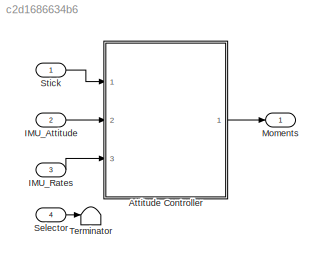
MODEL slx_c2d1686634b6
KIND model
CONFIG AbsTol = auto
CONFIG FixedStep = tc
CONFIG InitFcn = Parameters\n
CONFIG MaxStep = auto
CONFIG MinStep = auto
CONFIG RelTol = 1e-3
CONFIG SampleTimeConstraint = Unconstrained
CONFIG Solver = ode2
CONFIG SolverMode = Auto
CONFIG SolverName = ode2
CONFIG StartTime = 0.0
CONFIG StopTime = 10.0
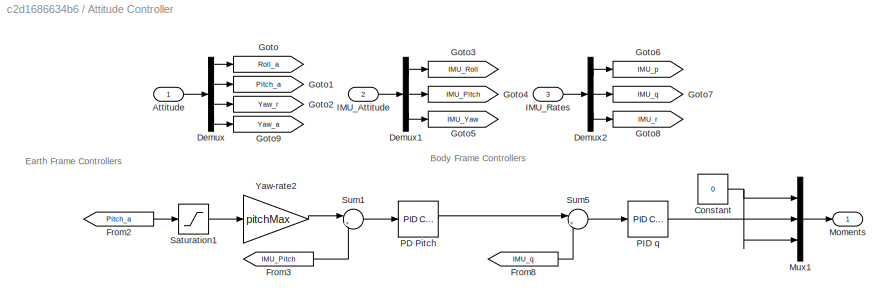
BLOCK [SubSystem] Attitude Controller
  Ports = [3, 1]
  RequestExecContextInheritance = off
  Variant = off
BLOCK [Inport] Attitude Controller/Attitude
  IconDisplay = Port number
BLOCK [Constant] Attitude Controller/Constant
  Value = 0
BLOCK [Demux] Attitude Controller/Demux
  DisplayOption = bar
  Ports = [1, 4]
BLOCK [Demux] Attitude Controller/Demux1
  DisplayOption = bar
  Outputs = 3
  Ports = [1, 3]
BLOCK [Demux] Attitude Controller/Demux2
  DisplayOption = bar
  Outputs = 3
  Ports = [1, 3]
BLOCK [From] Attitude Controller/From2
  GotoTag = Pitch_a
BLOCK [From] Attitude Controller/From3
  GotoTag = IMU_Pitch
BLOCK [From] Attitude Controller/From8
  GotoTag = IMU_q
BLOCK [Goto] Attitude Controller/Goto
  GotoTag = Roll_a
BLOCK [Goto] Attitude Controller/Goto1
  GotoTag = Pitch_a
BLOCK [Goto] Attitude Controller/Goto2
  GotoTag = Yaw_r
BLOCK [Goto] Attitude Controller/Goto3
  GotoTag = IMU_Roll
BLOCK [Goto] Attitude Controller/Goto4
  GotoTag = IMU_Pitch
BLOCK [Goto] Attitude Controller/Goto5
  GotoTag = IMU_Yaw
BLOCK [Goto] Attitude Controller/Goto6
  GotoTag = IMU_p
BLOCK [Goto] Attitude Controller/Goto7
  GotoTag = IMU_q
BLOCK [Goto] Attitude Controller/Goto8
  GotoTag = IMU_r
BLOCK [Goto] Attitude Controller/Goto9
  GotoTag = Yaw_a
BLOCK [Inport] Attitude Controller/IMU_Attitude
  IconDisplay = Port number
  Port = 2
BLOCK [Inport] Attitude Controller/IMU_Rates
  IconDisplay = Port number
  Port = 3
BLOCK [Outport] Attitude Controller/Moments
  IconDisplay = Port number
BLOCK [Mux] Attitude Controller/Mux1
  DisplayOption = bar
  Inputs = 3
  Ports = [3, 1]
BLOCK [Reference] Attitude Controller/PD Pitch  REF=simulink/Continuous/PID Controller
  Ports = [1, 1]
  SourceBlock = simulink/Continuous/PID Controller
  SourceType = PID 1dof
BLOCK [Reference] Attitude Controller/PID q  REF=simulink/Continuous/PID Controller
  Ports = [1, 1]
  SourceBlock = simulink/Continuous/PID Controller
  SourceType = PID 1dof
BLOCK [Saturate] Attitude Controller/Saturation1
  InputPortMap = u0
  LowerLimit = -1
  Ports = [1, 1]
  UpperLimit = 1
BLOCK [Sum] Attitude Controller/Sum1
  IconShape = round
  InputSameDT = off
  Inputs = |+-
  OutDataTypeStr = Inherit: Inherit via internal rule
  Ports = [2, 1]
  SaturateOnIntegerOverflow = off
BLOCK [Sum] Attitude Controller/Sum5
  IconShape = round
  InputSameDT = off
  Inputs = |+-
  OutDataTypeStr = Inherit: Inherit via internal rule
  Ports = [2, 1]
  SaturateOnIntegerOverflow = off
BLOCK [Gain] Attitude Controller/Yaw-rate2
  Gain = pitchMax
  OutDataTypeStr = Inherit: Inherit via internal rule
  ParamDataTypeStr = Inherit: Inherit via internal rule
  SaturateOnIntegerOverflow = off
BLOCK [Inport] IMU_Attitude
  IconDisplay = Port number
  Port = 2
BLOCK [Inport] IMU_Rates
  IconDisplay = Port number
  Port = 3
BLOCK [Outport] Moments
  IconDisplay = Port number
BLOCK [Inport] Selector
  IconDisplay = Port number
  Port = 4
BLOCK [Inport] Stick
  IconDisplay = Port number
BLOCK [Terminator] Terminator
ANNOTATION Attitude Controller: Body Frame Controllers
ANNOTATION Attitude Controller: Earth Frame Controllers
LINE Attitude Controller/Attitude:1 -> Attitude Controller/Demux:1
NET Attitude Controller/Constant:1 -> Attitude Controller/Mux1:1, Attitude Controller/Mux1:3
LINE Attitude Controller/Demux1:1 -> Attitude Controller/Goto3:1
LINE Attitude Controller/Demux1:2 -> Attitude Controller/Goto4:1
LINE Attitude Controller/Demux1:3 -> Attitude Controller/Goto5:1
LINE Attitude Controller/Demux2:1 -> Attitude Controller/Goto6:1
LINE Attitude Controller/Demux2:2 -> Attitude Controller/Goto7:1
LINE Attitude Controller/Demux2:3 -> Attitude Controller/Goto8:1
LINE Attitude Controller/Demux:1 -> Attitude Controller/Goto:1
LINE Attitude Controller/Demux:2 -> Attitude Controller/Goto1:1
LINE Attitude Controller/Demux:3 -> Attitude Controller/Goto2:1
LINE Attitude Controller/Demux:4 -> Attitude Controller/Goto9:1
LINE Attitude Controller/From2:1 -> Attitude Controller/Saturation1:1
LINE Attitude Controller/From3:1 -> Attitude Controller/Sum1:2
LINE Attitude Controller/From8:1 -> Attitude Controller/Sum5:2
LINE Attitude Controller/IMU_Attitude:1 -> Attitude Controller/Demux1:1
LINE Attitude Controller/IMU_Rates:1 -> Attitude Controller/Demux2:1
LINE Attitude Controller/Mux1:1 -> Attitude Controller/Moments:1
LINE Attitude Controller/PD Pitch:1 -> Attitude Controller/Sum5:1
LINE Attitude Controller/PID q:1 -> Attitude Controller/Mux1:2
LINE Attitude Controller/Saturation1:1 -> Attitude Controller/Yaw-rate2:1
LINE Attitude Controller/Sum1:1 -> Attitude Controller/PD Pitch:1
LINE Attitude Controller/Sum5:1 -> Attitude Controller/PID q:1
LINE Attitude Controller/Yaw-rate2:1 -> Attitude Controller/Sum1:1
LINE Attitude Controller:1 -> Moments:1
LINE IMU_Attitude:1 -> Attitude Controller:2
LINE IMU_Rates:1 -> Attitude Controller:3
LINE Selector:1 -> Terminator:1
LINE Stick:1 -> Attitude Controller:1
note: NET lines group one-source signal fan-out (src -> all destinations, sorted); 1:1 wires keep LINE
